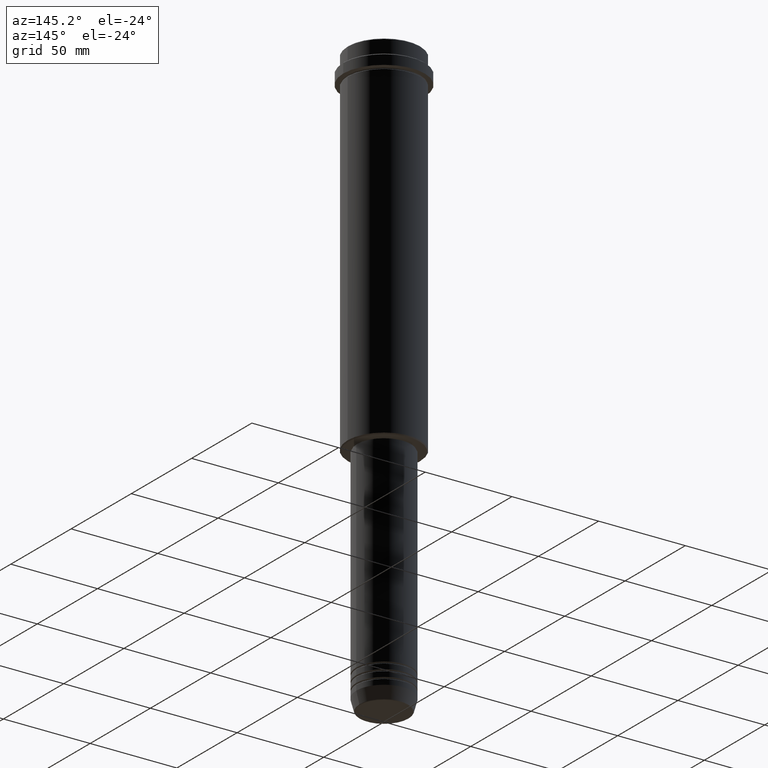
[diagram: clean part render]
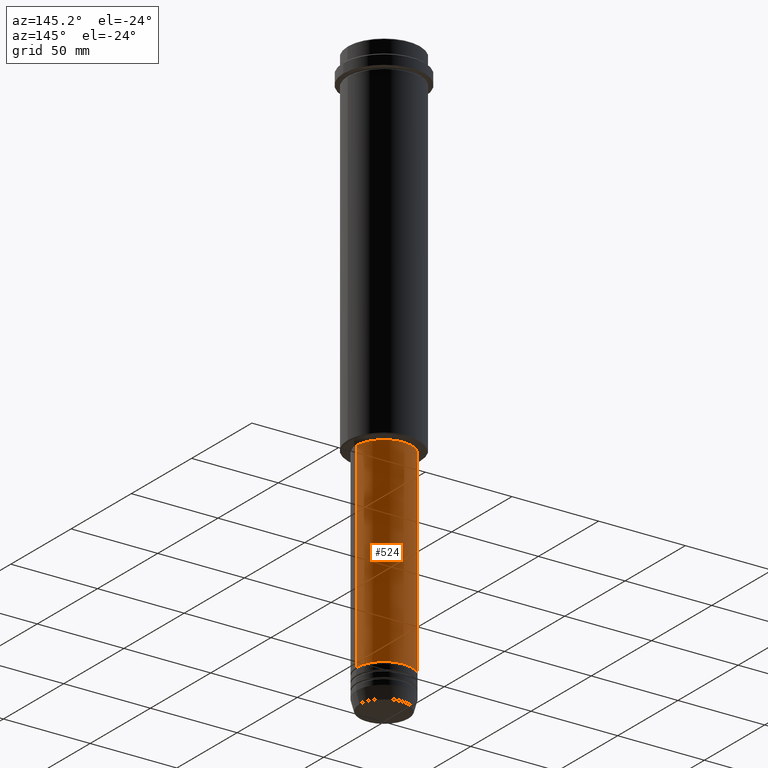
[diagram: same view with one face highlighted and labeled with its STEP entity id]
A machine part, auxiliary view. The second image highlights one B-rep face of the part: STEP entity #524.
In plain terms, the highlighted cylindrical surface (edge-blend (fillet) strip) has radius 16 mm, axis along (-0, -0, 1).
Its self-contained STEP definition (entity closure, byte-faithful):
#62 = AXIS2_PLACEMENT_3D ( 'NONE', #1391, #1298, #337 ) ;
#67 = LINE ( 'NONE', #500, #527 ) ;
#84 = CIRCLE ( 'NONE', #287, 16.00000000000000355 ) ;
#97 = LINE ( 'NONE', #650, #415 ) ;
#108 = ORIENTED_EDGE ( 'NONE', *, *, #1306, .F. ) ;
#178 = CYLINDRICAL_SURFACE ( 'NONE', #1138, 16.00000000000000000 ) ;
#185 = DIRECTION ( 'NONE',  ( -0.000000000000000000, -0.000000000000000000, 1.000000000000000000 ) ) ;
#222 = EDGE_CURVE ( 'NONE', #774, #920, #67, .T. ) ;
#265 = DIRECTION ( 'NONE',  ( -0.000000000000000000, -0.000000000000000000, 1.000000000000000000 ) ) ;
#287 = AXIS2_PLACEMENT_3D ( 'NONE', #1304, #185, #711 ) ;
#326 = CARTESIAN_POINT ( 'NONE',  ( -16.00000000000000355, 1.959434878635765526E-15, -205.9999999999999432 ) ) ;
#337 = DIRECTION ( 'NONE',  ( 1.000000000000000000, 0.000000000000000000, 0.000000000000000000 ) ) ;
#413 = ORIENTED_EDGE ( 'NONE', *, *, #833, .F. ) ;
#415 = VECTOR ( 'NONE', #430, 1000.000000000000000 ) ;
#418 = CARTESIAN_POINT ( 'NONE',  ( 16.00000000000000000, 0.000000000000000000, -320.9999999999998863 ) ) ;
#430 = DIRECTION ( 'NONE',  ( -0.000000000000000000, -0.000000000000000000, 1.000000000000000000 ) ) ;
#500 = CARTESIAN_POINT ( 'NONE',  ( -16.00000000000000000, 1.959434878635765131E-15, 0.000000000000000000 ) ) ;
#524 = ADVANCED_FACE ( 'NONE', ( #1103 ), #178, .T. ) ;
#527 = VECTOR ( 'NONE', #1041, 1000.000000000000000 ) ;
#650 = CARTESIAN_POINT ( 'NONE',  ( 16.00000000000000000, 0.000000000000000000, 0.000000000000000000 ) ) ;
#653 = CARTESIAN_POINT ( 'NONE',  ( -16.00000000000000000, 1.959434878635765131E-15, -320.9999999999998863 ) ) ;
#663 = ORIENTED_EDGE ( 'NONE', *, *, #1261, .T. ) ;
#678 = VERTEX_POINT ( 'NONE', #1197 ) ;
#688 = ORIENTED_EDGE ( 'NONE', *, *, #222, .T. ) ;
#711 = DIRECTION ( 'NONE',  ( 1.000000000000000000, 0.000000000000000000, 0.000000000000000000 ) ) ;
#774 = VERTEX_POINT ( 'NONE', #653 ) ;
#833 = EDGE_CURVE ( 'NONE', #678, #920, #84, .T. ) ;
#855 = EDGE_LOOP ( 'NONE', ( #663, #688, #413, #108 ) ) ;
#920 = VERTEX_POINT ( 'NONE', #326 ) ;
#1032 = CIRCLE ( 'NONE', #62, 16.00000000000000000 ) ;
#1041 = DIRECTION ( 'NONE',  ( -0.000000000000000000, -0.000000000000000000, 1.000000000000000000 ) ) ;
#1103 = FACE_OUTER_BOUND ( 'NONE', #855, .T. ) ;
#1122 = DIRECTION ( 'NONE',  ( 1.000000000000000000, 0.000000000000000000, 0.000000000000000000 ) ) ;
#1138 = AXIS2_PLACEMENT_3D ( 'NONE', #1226, #265, #1122 ) ;
#1197 = CARTESIAN_POINT ( 'NONE',  ( 16.00000000000000355, 0.000000000000000000, -205.9999999999999432 ) ) ;
#1226 = CARTESIAN_POINT ( 'NONE',  ( 0.000000000000000000, 0.000000000000000000, 0.000000000000000000 ) ) ;
#1261 = EDGE_CURVE ( 'NONE', #1404, #774, #1032, .T. ) ;
#1298 = DIRECTION ( 'NONE',  ( -0.000000000000000000, -0.000000000000000000, 1.000000000000000000 ) ) ;
#1304 = CARTESIAN_POINT ( 'NONE',  ( 0.000000000000000000, 0.000000000000000000, -205.9999999999999432 ) ) ;
#1306 = EDGE_CURVE ( 'NONE', #1404, #678, #97, .T. ) ;
#1391 = CARTESIAN_POINT ( 'NONE',  ( 0.000000000000000000, 0.000000000000000000, -320.9999999999998863 ) ) ;
#1404 = VERTEX_POINT ( 'NONE', #418 ) ;